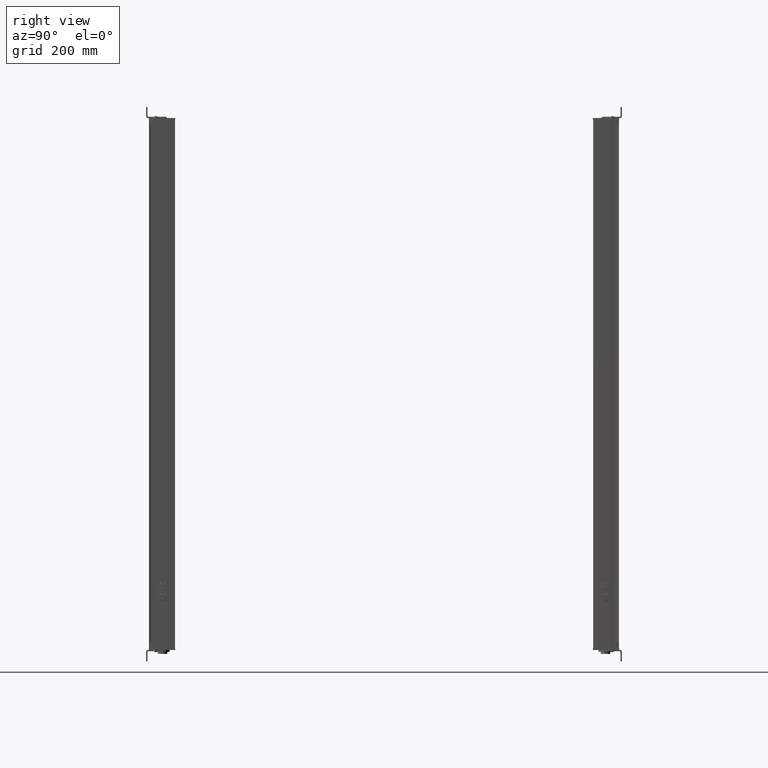
[diagram: clean part render]
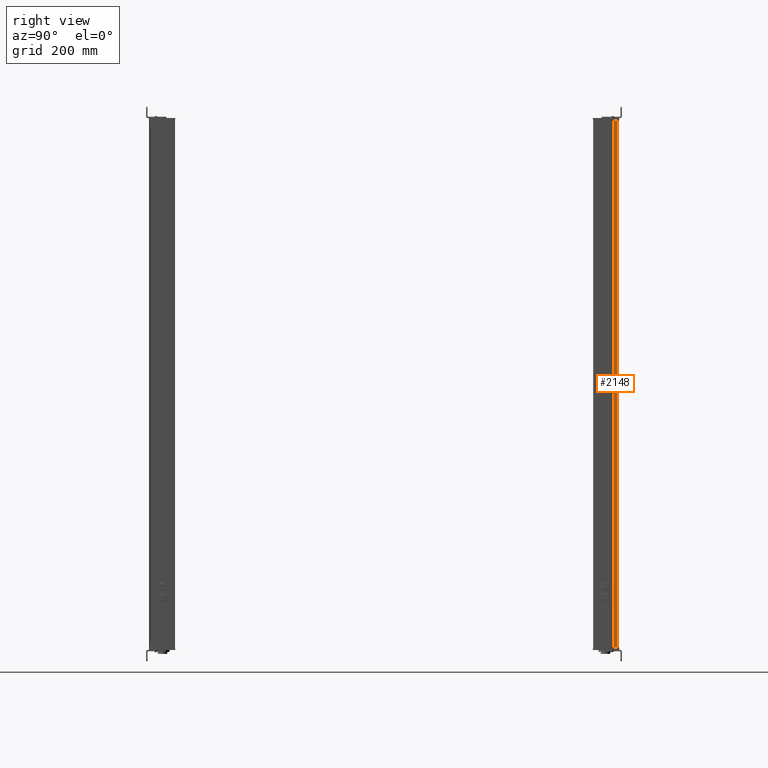
[diagram: same view with one face highlighted and labeled with its STEP entity id]
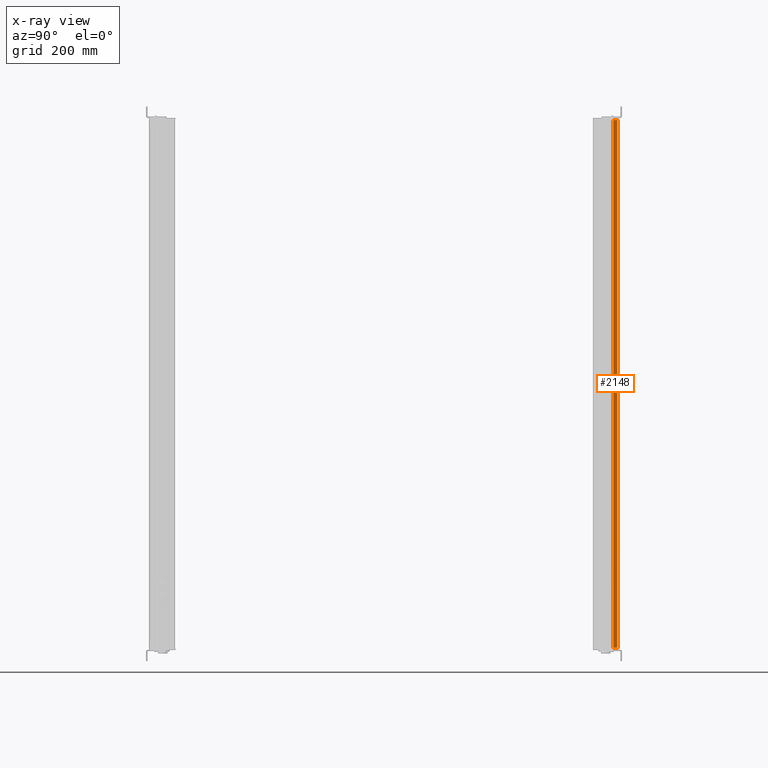
[diagram: x-ray of the same camera — body ghosted, the highlighted face saturated]
A machine part, right view. The second image highlights one B-rep face of the part: STEP entity #2148.
The next image is the same camera in x-ray: the body ghosted, the highlighted face saturated — about 0% of this face is hidden behind the body in this view.
In plain terms, the highlighted planar face has unit normal (1, 0, 0).
Its self-contained STEP definition (entity closure, byte-faithful):
#660=CARTESIAN_POINT('Axis2P3D Location',(613.195548937,133.067790275,0.)) ;
#2101=CARTESIAN_POINT('Vertex',(613.195548938,133.067790275,0.)) ;
#2104=CARTESIAN_POINT('Line Origine',(613.195548938,133.067790275,631.)) ;
#2108=CARTESIAN_POINT('Vertex',(613.195548938,133.067790275,1262.)) ;
#2123=CARTESIAN_POINT('Line Origine',(613.195548937,128.589896023,0.)) ;
#2127=CARTESIAN_POINT('Vertex',(613.195548937,124.112001771,0.)) ;
#2130=CARTESIAN_POINT('Line Origine',(613.195548937,124.112001771,631.)) ;
#2134=CARTESIAN_POINT('Vertex',(613.195548937,124.112001771,1262.)) ;
#2137=CARTESIAN_POINT('Line Origine',(613.195548937,128.589896023,1262.)) ;
#661=DIRECTION('Axis2P3D Direction',(-1.,0.,0.)) ;
#662=DIRECTION('Axis2P3D XDirection',(0.,-1.,0.)) ;
#2105=DIRECTION('Vector Direction',(0.,0.,1.)) ;
#2124=DIRECTION('Vector Direction',(0.,-1.,0.)) ;
#2131=DIRECTION('Vector Direction',(0.,0.,1.)) ;
#2138=DIRECTION('Vector Direction',(0.,-1.,0.)) ;
#663=AXIS2_PLACEMENT_3D('Plane Axis2P3D',#660,#661,#662) ;
#2143=ORIENTED_EDGE('',*,*,#2110,.F.) ;
#2144=ORIENTED_EDGE('',*,*,#2129,.T.) ;
#2145=ORIENTED_EDGE('',*,*,#2136,.T.) ;
#2146=ORIENTED_EDGE('',*,*,#2141,.F.) ;
#2106=VECTOR('Line Direction',#2105,1.) ;
#2125=VECTOR('Line Direction',#2124,1.) ;
#2132=VECTOR('Line Direction',#2131,1.) ;
#2139=VECTOR('Line Direction',#2138,1.) ;
#2148=ADVANCED_FACE('Body.2',(#2147),#664,.T.) ;
#2110=EDGE_CURVE('',#2102,#2109,#2107,.T.) ;
#2129=EDGE_CURVE('',#2102,#2128,#2126,.T.) ;
#2136=EDGE_CURVE('',#2128,#2135,#2133,.T.) ;
#2141=EDGE_CURVE('',#2109,#2135,#2140,.T.) ;
#2142=EDGE_LOOP('',(#2143,#2144,#2145,#2146)) ;
#2147=FACE_OUTER_BOUND('',#2142,.T.) ;
#2107=LINE('Line',#2104,#2106) ;
#2126=LINE('Line',#2123,#2125) ;
#2133=LINE('Line',#2130,#2132) ;
#2140=LINE('Line',#2137,#2139) ;
#664=PLANE('Plane',#663) ;
#2102=VERTEX_POINT('',#2101) ;
#2109=VERTEX_POINT('',#2108) ;
#2128=VERTEX_POINT('',#2127) ;
#2135=VERTEX_POINT('',#2134) ;